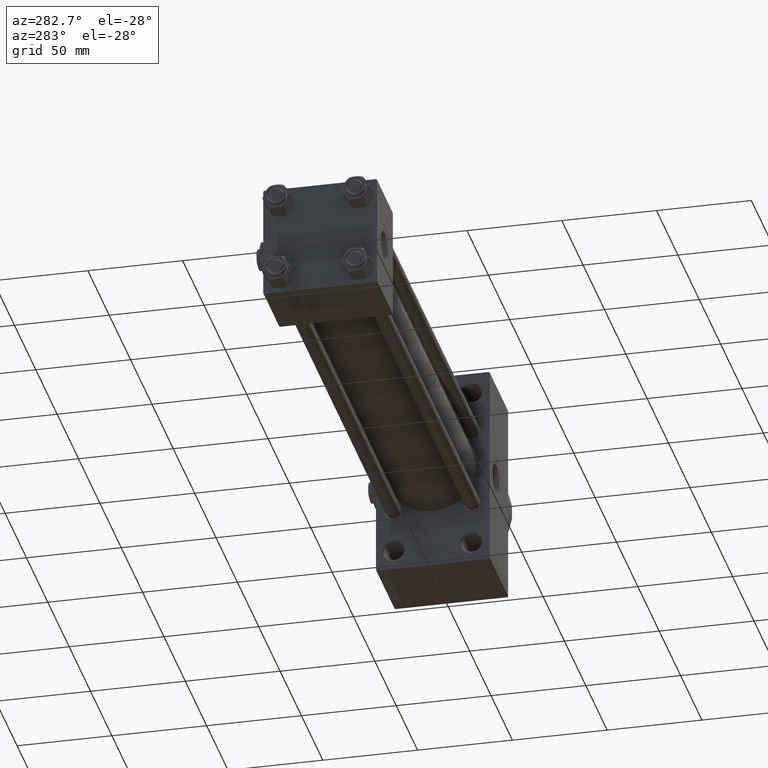
[diagram: clean part render]
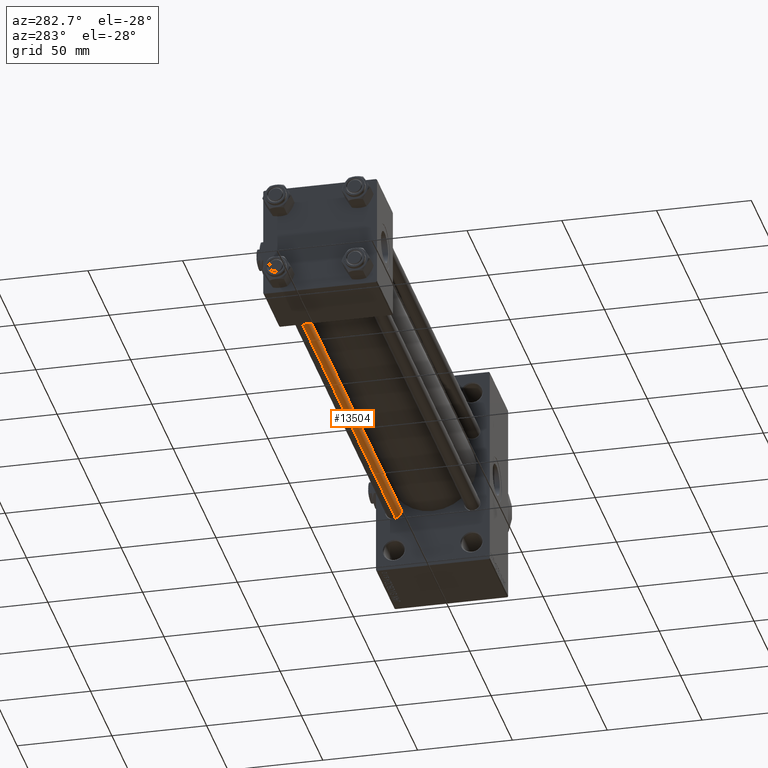
[diagram: same view with one face highlighted and labeled with its STEP entity id]
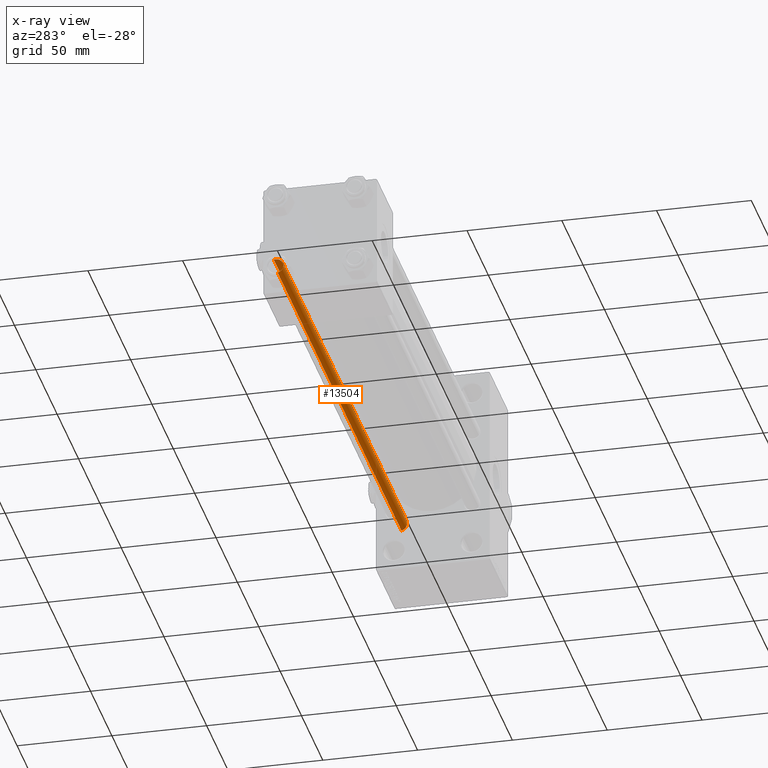
[diagram: x-ray of the same camera — body ghosted, the highlighted face saturated]
A machine part, auxiliary view. The second image highlights one B-rep face of the part: STEP entity #13504.
The next image is the same camera in x-ray: the body ghosted, the highlighted face saturated — about 0% of this face is hidden behind the body in this view.
In plain terms, the highlighted cylindrical surface (edge-blend (fillet) strip) has radius 4 mm, axis along (1, -0, 0).
Its self-contained STEP definition (entity closure, byte-faithful):
#185 = DIRECTION ( 'NONE',  ( 1.000000000000000000, 0.000000000000000000, 0.000000000000000000 ) ) ;
#436 = CARTESIAN_POINT ( 'NONE',  ( 0.000000000000000000, 0.000000000000000000, 290.4999999999999432 ) ) ;
#1180 = VECTOR ( 'NONE', #45101, 1000.000000000000000 ) ;
#2977 = CARTESIAN_POINT ( 'NONE',  ( 0.000000000000000000, 0.000000000000000000, 291.0000000000000000 ) ) ;
#3429 = CARTESIAN_POINT ( 'NONE',  ( -4.000000000000000000, 0.000000000000000000, 290.4999999999999432 ) ) ;
#6719 = CYLINDRICAL_SURFACE ( 'NONE', #45704, 4.000000000000000000 ) ;
#8160 = EDGE_LOOP ( 'NONE', ( #11957, #41179, #19121, #37187 ) ) ;
#10342 = CARTESIAN_POINT ( 'NONE',  ( 4.000000000000000000, 4.898587196589412829E-16, 290.4999999999999432 ) ) ;
#10709 = LINE ( 'NONE', #41358, #1180 ) ;
#11957 = ORIENTED_EDGE ( 'NONE', *, *, #40502, .F. ) ;
#12140 = VERTEX_POINT ( 'NONE', #10342 ) ;
#12252 = CIRCLE ( 'NONE', #32220, 4.000000000000000000 ) ;
#12281 = VECTOR ( 'NONE', #16944, 1000.000000000000000 ) ;
#12799 = DIRECTION ( 'NONE',  ( 1.000000000000000000, 0.000000000000000000, 0.000000000000000000 ) ) ;
#13504 = ADVANCED_FACE ( 'NONE', ( #40877 ), #6719, .T. ) ;
#14603 = LINE ( 'NONE', #40535, #12281 ) ;
#15154 = EDGE_CURVE ( 'NONE', #39366, #33369, #10709, .T. ) ;
#15639 = DIRECTION ( 'NONE',  ( 0.000000000000000000, 0.000000000000000000, -1.000000000000000000 ) ) ;
#16944 = DIRECTION ( 'NONE',  ( -0.000000000000000000, -0.000000000000000000, -1.000000000000000000 ) ) ;
#18197 = DIRECTION ( 'NONE',  ( -1.000000000000000000, 0.000000000000000000, 0.000000000000000000 ) ) ;
#19121 = ORIENTED_EDGE ( 'NONE', *, *, #15154, .T. ) ;
#22459 = VERTEX_POINT ( 'NONE', #40936 ) ;
#32220 = AXIS2_PLACEMENT_3D ( 'NONE', #45810, #46961, #12799 ) ;
#33369 = VERTEX_POINT ( 'NONE', #47092 ) ;
#36808 = EDGE_CURVE ( 'NONE', #33369, #22459, #12252, .T. ) ;
#37187 = ORIENTED_EDGE ( 'NONE', *, *, #36808, .T. ) ;
#39366 = VERTEX_POINT ( 'NONE', #3429 ) ;
#40502 = EDGE_CURVE ( 'NONE', #12140, #22459, #14603, .T. ) ;
#40535 = CARTESIAN_POINT ( 'NONE',  ( 4.000000000000000000, 4.898587196589412829E-16, 291.0000000000000000 ) ) ;
#40877 = FACE_OUTER_BOUND ( 'NONE', #8160, .T. ) ;
#40936 = CARTESIAN_POINT ( 'NONE',  ( 4.000000000000000000, 4.898587196589412829E-16, 0.5000000000000559552 ) ) ;
#41179 = ORIENTED_EDGE ( 'NONE', *, *, #48673, .T. ) ;
#41358 = CARTESIAN_POINT ( 'NONE',  ( -4.000000000000000000, 0.000000000000000000, 291.0000000000000000 ) ) ;
#41716 = CIRCLE ( 'NONE', #45662, 4.000000000000000000 ) ;
#45101 = DIRECTION ( 'NONE',  ( -0.000000000000000000, -0.000000000000000000, -1.000000000000000000 ) ) ;
#45662 = AXIS2_PLACEMENT_3D ( 'NONE', #436, #15639, #185 ) ;
#45704 = AXIS2_PLACEMENT_3D ( 'NONE', #2977, #48842, #18197 ) ;
#45810 = CARTESIAN_POINT ( 'NONE',  ( 0.000000000000000000, 0.000000000000000000, 0.5000000000000559552 ) ) ;
#46961 = DIRECTION ( 'NONE',  ( -0.000000000000000000, -0.000000000000000000, 1.000000000000000000 ) ) ;
#47092 = CARTESIAN_POINT ( 'NONE',  ( -4.000000000000000000, 0.000000000000000000, 0.5000000000000559552 ) ) ;
#48673 = EDGE_CURVE ( 'NONE', #12140, #39366, #41716, .T. ) ;
#48842 = DIRECTION ( 'NONE',  ( -0.000000000000000000, -0.000000000000000000, -1.000000000000000000 ) ) ;